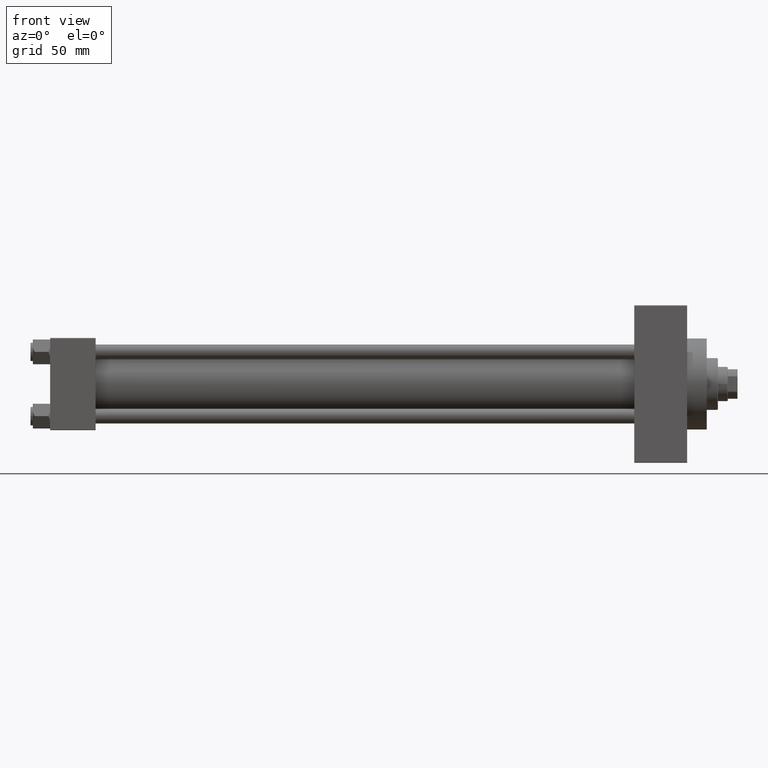
[diagram: clean part render]
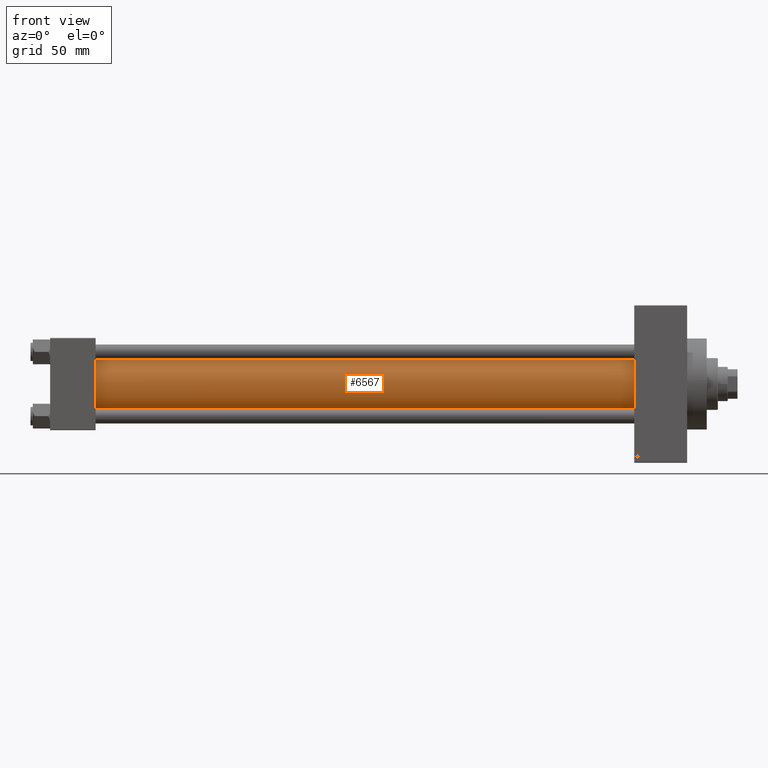
[diagram: same view with one face highlighted and labeled with its STEP entity id]
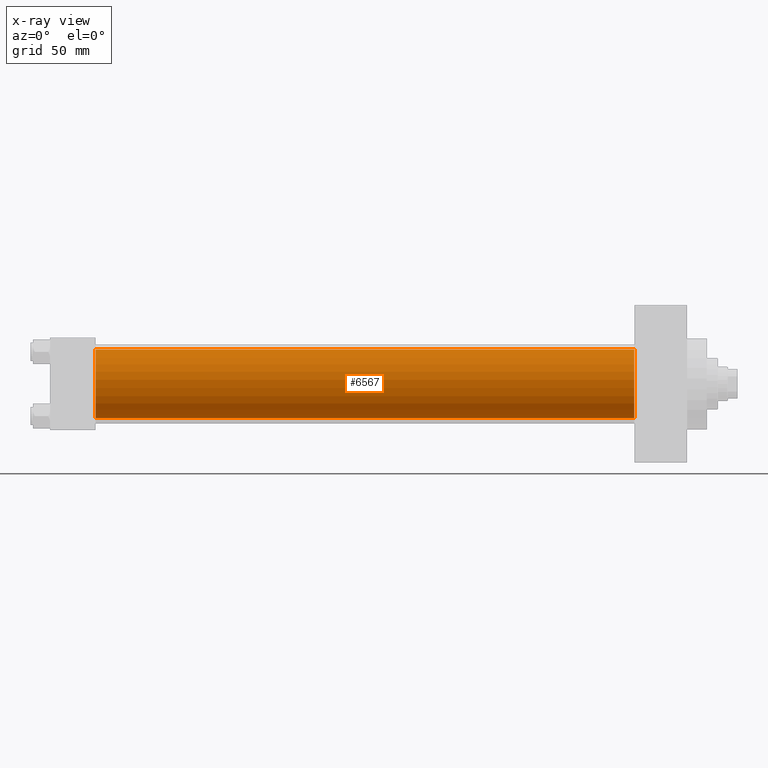
[diagram: x-ray of the same camera — body ghosted, the highlighted face saturated]
A machine part, front view. The second image highlights one B-rep face of the part: STEP entity #6567.
The next image is the same camera in x-ray: the body ghosted, the highlighted face saturated — about 0% of this face is hidden behind the body in this view.
In plain terms, the highlighted cylindrical surface (edge-blend (fillet) strip) has radius 28 mm, axis along (-1, -0, -0).
Its self-contained STEP definition (entity closure, byte-faithful):
#416 = AXIS2_PLACEMENT_3D ( 'NONE', #1833, #24141, #5079 ) ;
#1190 = EDGE_LOOP ( 'NONE', ( #43344, #44633, #7704, #29655 ) ) ;
#1833 = CARTESIAN_POINT ( 'NONE',  ( 36.99999999999997868, -2.602085213965210642E-15, 0.000000000000000000 ) ) ;
#1900 = CYLINDRICAL_SURFACE ( 'NONE', #45269, 28.00000000000000000 ) ;
#4079 = EDGE_CURVE ( 'NONE', #15347, #34646, #47602, .T. ) ;
#4449 = DIRECTION ( 'NONE',  ( -1.000000000000000000, -0.000000000000000000, -0.000000000000000000 ) ) ;
#5079 = DIRECTION ( 'NONE',  ( 0.000000000000000000, 0.000000000000000000, 1.000000000000000000 ) ) ;
#6567 = ADVANCED_FACE ( 'NONE', ( #35453 ), #1900, .T. ) ;
#6950 = VERTEX_POINT ( 'NONE', #14098 ) ;
#7017 = VECTOR ( 'NONE', #4449, 1000.000000000000000 ) ;
#7704 = ORIENTED_EDGE ( 'NONE', *, *, #13721, .T. ) ;
#8379 = EDGE_CURVE ( 'NONE', #11094, #34646, #48875, .T. ) ;
#9649 = DIRECTION ( 'NONE',  ( 0.000000000000000000, 0.000000000000000000, 1.000000000000000000 ) ) ;
#10164 = VECTOR ( 'NONE', #37122, 1000.000000000000000 ) ;
#11094 = VERTEX_POINT ( 'NONE', #22326 ) ;
#11453 = CARTESIAN_POINT ( 'NONE',  ( 475.0000000000000000, -2.602085213965210642E-15, 0.000000000000000000 ) ) ;
#12924 = CARTESIAN_POINT ( 'NONE',  ( 36.99999999999997868, 8.269258236473784371E-16, -28.00000000000000000 ) ) ;
#12928 = DIRECTION ( 'NONE',  ( -1.000000000000000000, -0.000000000000000000, -0.000000000000000000 ) ) ;
#13721 = EDGE_CURVE ( 'NONE', #6950, #15347, #31251, .T. ) ;
#14098 = CARTESIAN_POINT ( 'NONE',  ( 475.0000000000000000, -2.602085213965210642E-15, 28.00000000000000000 ) ) ;
#15347 = VERTEX_POINT ( 'NONE', #29249 ) ;
#17229 = CIRCLE ( 'NONE', #37216, 28.00000000000000000 ) ;
#19233 = DIRECTION ( 'NONE',  ( 0.000000000000000000, 0.000000000000000000, -1.000000000000000000 ) ) ;
#20199 = CARTESIAN_POINT ( 'NONE',  ( 475.0000000000000000, -2.602085213965210642E-15, 0.000000000000000000 ) ) ;
#22326 = CARTESIAN_POINT ( 'NONE',  ( 475.0000000000000000, 8.269258236473784371E-16, -28.00000000000000000 ) ) ;
#24141 = DIRECTION ( 'NONE',  ( 1.000000000000000000, -0.000000000000000000, 0.000000000000000000 ) ) ;
#26750 = DIRECTION ( 'NONE',  ( 1.000000000000000000, 0.000000000000000000, 0.000000000000000000 ) ) ;
#29249 = CARTESIAN_POINT ( 'NONE',  ( 36.99999999999997868, -2.602085213965210642E-15, 28.00000000000000000 ) ) ;
#29655 = ORIENTED_EDGE ( 'NONE', *, *, #4079, .T. ) ;
#31251 = LINE ( 'NONE', #38270, #7017 ) ;
#34646 = VERTEX_POINT ( 'NONE', #12924 ) ;
#35453 = FACE_OUTER_BOUND ( 'NONE', #1190, .T. ) ;
#37122 = DIRECTION ( 'NONE',  ( -1.000000000000000000, -0.000000000000000000, -0.000000000000000000 ) ) ;
#37216 = AXIS2_PLACEMENT_3D ( 'NONE', #11453, #26750, #19233 ) ;
#38270 = CARTESIAN_POINT ( 'NONE',  ( 475.0000000000000000, -2.602085213965210642E-15, 28.00000000000000000 ) ) ;
#43344 = ORIENTED_EDGE ( 'NONE', *, *, #8379, .F. ) ;
#43698 = EDGE_CURVE ( 'NONE', #6950, #11094, #17229, .T. ) ;
#44633 = ORIENTED_EDGE ( 'NONE', *, *, #43698, .F. ) ;
#45269 = AXIS2_PLACEMENT_3D ( 'NONE', #20199, #12928, #9649 ) ;
#47602 = CIRCLE ( 'NONE', #416, 28.00000000000000000 ) ;
#47901 = CARTESIAN_POINT ( 'NONE',  ( 475.0000000000000000, 8.269258236473784371E-16, -28.00000000000000000 ) ) ;
#48875 = LINE ( 'NONE', #47901, #10164 ) ;